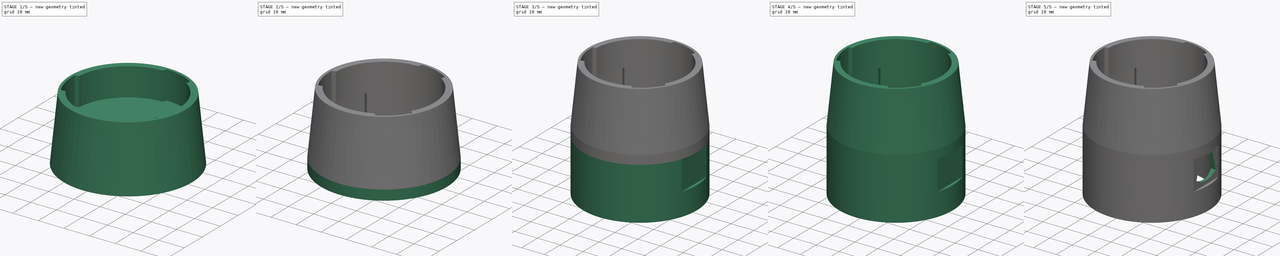
[diagram: build sequence overview — one tinted view per stage of 5, left to right]
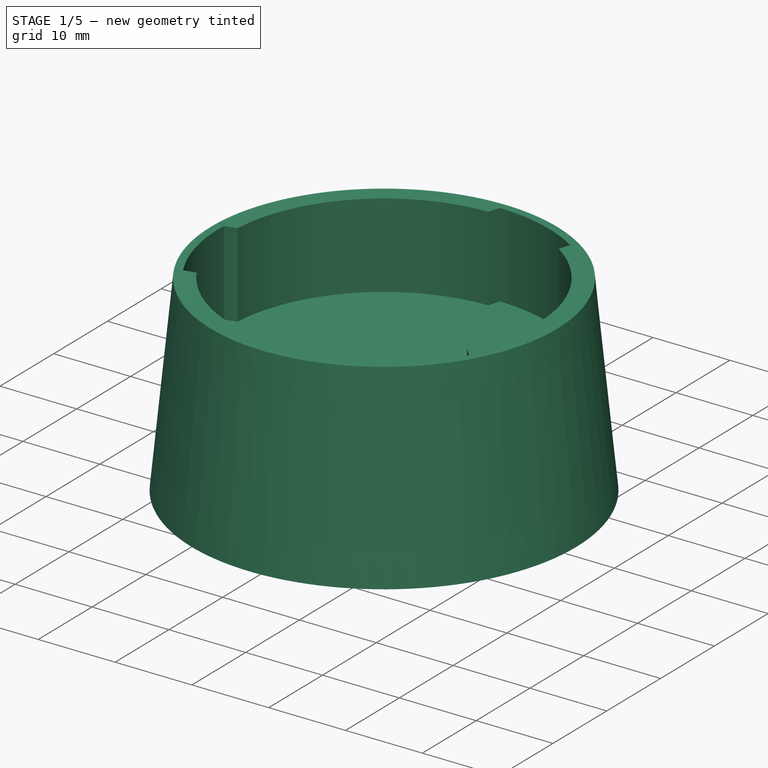
[diagram: stage 1 of 5 — iso view after this stage's code; geometry added in this stage tinted green]
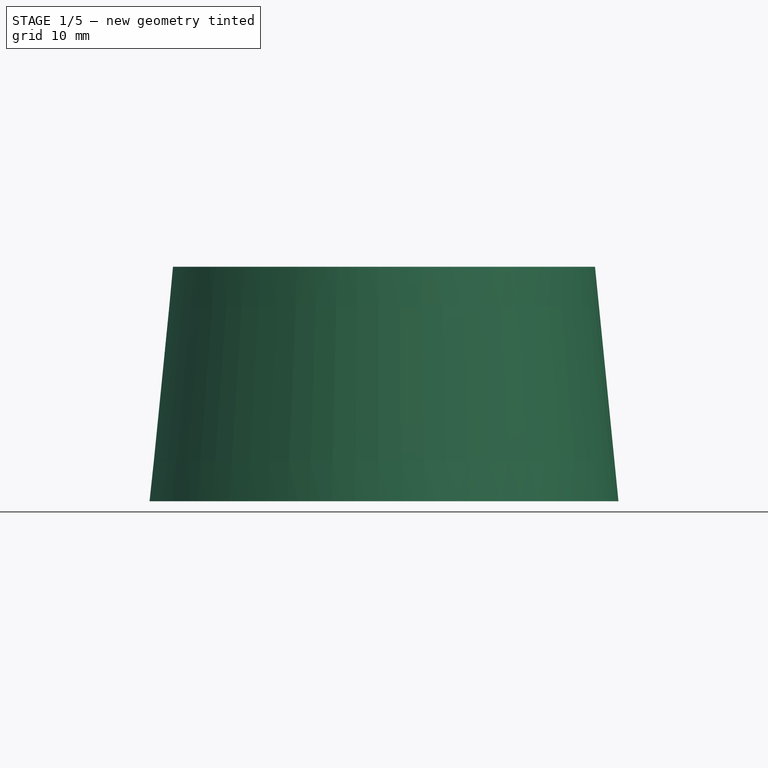
[diagram: stage 1 of 5 — front view after this stage's code; geometry added in this stage tinted green]
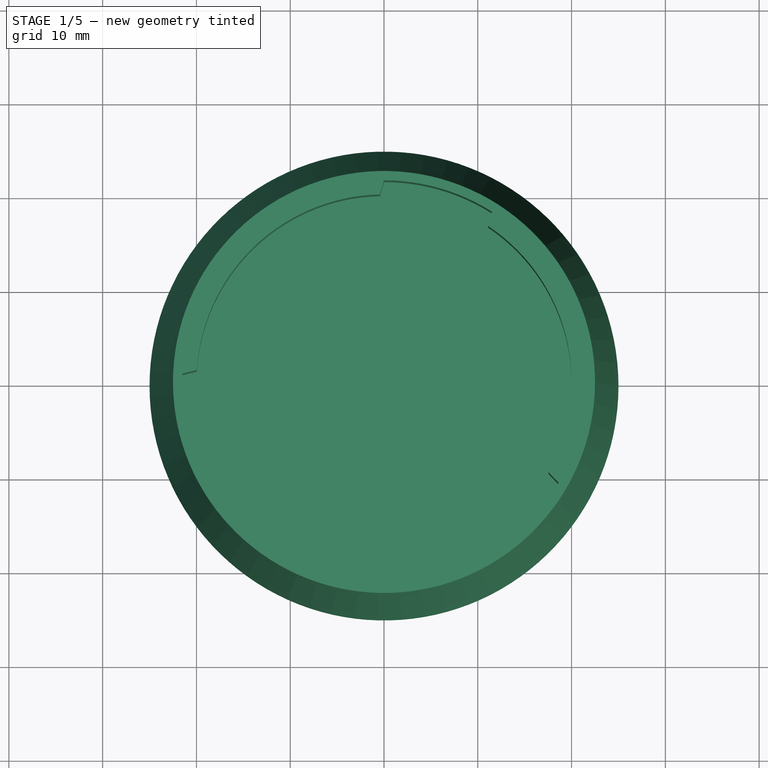
[diagram: stage 1 of 5 — top view after this stage's code; geometry added in this stage tinted green]
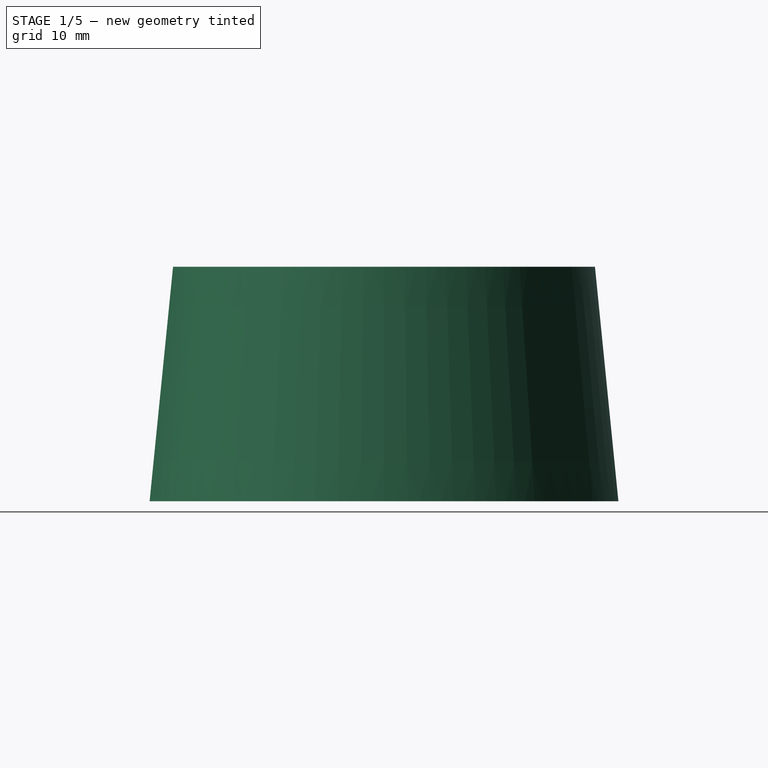
[diagram: stage 1 of 5 — right view after this stage's code; geometry added in this stage tinted green]
FCSTD DOCUMENT  (FreeCAD 0.20R29177 (Git))
Label: VacuumAdapter_Gas35_FestoolTS55
License: All rights reserved
LicenseURL: http://en.wikipedia.org/wiki/All_rights_reserved
objects: Part::Extrusion×7, Sketcher::SketchObject×6, Part::Face×6, Part::Fillet×4, Part::Cut×4, Part::Fuse×3, Part::Offset×2, Part::Cone×1
note: 33 computed .brp shape members not serialized (recipe doc carries the construction recipe); baked Part::Feature solids carry a one-line shape summary decoded from their .brp

FEATURE [Part::Cone] Cone
  Angle = 360
  AttacherType = Attacher::AttachEngine3D
  Height = 25
  Placement = pos=(0,0,27) rot=(0,0,1;0rad)
  Radius1 = 25
  Radius2 = 22.5
FEATURE [Sketcher::SketchObject] Sketch003
  FullyConstrained = true
  MapMode = 5
  Placement = pos=(0,0,52) rot=(0,0,1;0rad)
  Support = -> [Cone]
  sketch-geometry (17):
    g0: LineSegment StartX=0 StartY=0 StartZ=0 EndX=19.4856 EndY=-11.25 EndZ=0
    g1: LineSegment StartX=0 StartY=0 StartZ=0 EndX=-19.4856 EndY=-11.25 EndZ=0
    g2: ArcOfCircle CenterX=0 CenterY=0 CenterZ=0 NormalX=0 NormalY=0 NormalZ=1 AngleXU=0 Radius=21.5 StartAngle=1.00515 EndAngle=1.5708
    g3: ArcOfCircle CenterX=0 CenterY=0 CenterZ=0 NormalX=0 NormalY=0 NormalZ=1 AngleXU=0 Radius=21.5 StartAngle=5.19394 EndAngle=5.75959
    g4: ArcOfCircle CenterX=0 CenterY=0 CenterZ=0 NormalX=0 NormalY=0 NormalZ=1 AngleXU=0 Radius=21.5 StartAngle=3.09954 EndAngle=3.66519
    g5: ArcOfCircle CenterX=0 CenterY=0 CenterZ=0 NormalX=0 NormalY=0 NormalZ=1 AngleXU=0 Radius=20 StartAngle=1.59266 EndAngle=3.07767
    g6: ArcOfCircle CenterX=0 CenterY=0 CenterZ=0 NormalX=0 NormalY=0 NormalZ=1 AngleXU=0 Radius=20 StartAngle=3.68706 EndAngle=5.17207
    g7: ArcOfCircle CenterX=0 CenterY=0 CenterZ=0 NormalX=0 NormalY=0 NormalZ=1 AngleXU=0 Radius=20 StartAngle=5.78145 EndAngle=7.26646
    g8: LineSegment StartX=17.535 StartY=-9.61888 StartZ=0 EndX=18.6195 EndY=-10.75 EndZ=0
    g9: LineSegment StartX=8.87322 StartY=-17.9239 StartZ=0 EndX=9.95774 EndY=-19.055 EndZ=0
    g10: LineSegment StartX=-17.0977 StartY=-10.3763 StartZ=0 EndX=-18.6195 EndY=-10.75 EndZ=0
    g11: LineSegment StartX=-21.481 StartY=0.903846 StartZ=0 EndX=-19.9592 EndY=1.27751 EndZ=0
    g12: LineSegment StartX=-0.437313 StartY=19.9952 StartZ=0 EndX=1e-16 EndY=21.5 EndZ=0
    g13: LineSegment StartX=11.0859 StartY=16.6464 StartZ=0 EndX=11.5232 EndY=18.1512 EndZ=0
    g14: LineSegment StartX=-0.437313 StartY=19.9952 StartZ=0 EndX=11.0859 EndY=16.6464 EndZ=0
    g15: LineSegment StartX=17.535 StartY=-9.61888 StartZ=0 EndX=8.87322 EndY=-17.9239 EndZ=0
    g16: LineSegment StartX=-17.0977 StartY=-10.3763 StartZ=0 EndX=-19.9592 EndY=1.27751 EndZ=0
  constraints (48):
    c: Coincident(g0,g-1)
    c: Coincident(g1,g0)
    c: Angle(g0,g-2) = 2.0944
    c: Angle(g-2,g1) = 2.0944
    c: Coincident(g2,g0)
    c: PointOnObject(g2,g-2)
    c: Diameter(g2) = 43
    c: Coincident(g3,g2)
    c: PointOnObject(g3,g0)
    c: Diameter(g3) = 43
    c: Coincident(g4,g2)
    c: PointOnObject(g4,g1)
    c: Diameter(g4) = 43
    c: Distance(g2,g2) = 12
    c: Distance(g3,g3) = 12
    c: Distance(g4,g4) = 12
    c: Distance(g1) = 22.5
    c: Distance(g0) = 22.5
    c: Coincident(g5,g2)
    c: Coincident(g6,g2)
    c: Coincident(g7,g2)
    c: Diameter(g5) = 40
    c: Diameter(g7) = 40
    c: Diameter(g6) = 40
    c: Coincident(g8,g7)
    c: Coincident(g8,g3)
    c: Coincident(g9,g6)
    c: Coincident(g9,g3)
    c: Coincident(g10,g6)
    c: Coincident(g10,g4)
    c: Coincident(g11,g4)
    c: Coincident(g11,g5)
    c: Coincident(g12,g5)
    c: Coincident(g12,g2)
    c: Coincident(g13,g7)
    c: Coincident(g13,g2)
    c: Parallel(g8,g9)
    c: Parallel(g10,g11)
    c: Parallel(g12,g13)
    c: Coincident(g14,g5)
    c: Coincident(g14,g7)
    c: Angle(g14,g12) = 1.5708
    c: Coincident(g15,g7)
    c: Coincident(g15,g6)
    c: Coincident(g16,g6)
    c: Coincident(g16,g5)
    c: Angle(g15,g8) = 1.5708
    c: Angle(g16,g10) = 1.5708
FEATURE [Part::Face] Face003
  FaceMakerClass = Part::FaceMakerBullseye
  Sources = -> [Sketch003]
FEATURE [Part::Extrusion] Extrude004
  Base = -> Sketch003
  Dir = (0,0,1)
  DirMode = 2
  FaceMakerClass = Part::FaceMakerBullseye
  LengthFwd = -11
  LengthRev = 0
  Solid = true
  Symmetric = false
FEATURE [Sketcher::SketchObject] Sketch004
  ExternalGeometry = -> [Extrude004]
  FullyConstrained = true
  MapMode = 5
  Placement = pos=(0,0,41) rot=(1,0,0;3.14159rad)
  Support = -> [Extrude004]
  sketch-geometry (12):
    g0: ArcOfCircle CenterX=0 CenterY=0 CenterZ=0 NormalX=0 NormalY=0 NormalZ=1 AngleXU=0 Radius=21.5 StartAngle=4.71239 EndAngle=5.89667
    g1: ArcOfCircle CenterX=0 CenterY=0 CenterZ=0 NormalX=0 NormalY=0 NormalZ=1 AngleXU=0 Radius=21.5 StartAngle=0.523599 EndAngle=1.70788
    g2: ArcOfCircle CenterX=0 CenterY=0 CenterZ=0 NormalX=0 NormalY=0 NormalZ=1 AngleXU=0 Radius=21.5 StartAngle=2.61799 EndAngle=3.80228
    g3: LineSegment StartX=-3.9e-15 StartY=-21.5 StartZ=0 EndX=-0.437313 EndY=-19.9952 EndZ=0
    g4: LineSegment StartX=-18.6195 StartY=10.75 StartZ=0 EndX=-17.0977 EndY=10.3763 EndZ=0
    g5: LineSegment StartX=18.6195 StartY=10.75 StartZ=0 EndX=17.535 EndY=9.61888 EndZ=0
    g6: ArcOfCircle CenterX=0 CenterY=0 CenterZ=0 NormalX=0 NormalY=0 NormalZ=1 AngleXU=0 Radius=20 StartAngle=5.91225 EndAngle=6.78492
    g7: ArcOfCircle CenterX=0 CenterY=0 CenterZ=0 NormalX=0 NormalY=0 NormalZ=1 AngleXU=0 Radius=20 StartAngle=3.81786 EndAngle=4.69052
    g8: ArcOfCircle CenterX=0 CenterY=0 CenterZ=0 NormalX=0 NormalY=0 NormalZ=1 AngleXU=0 Radius=20 StartAngle=1.72346 EndAngle=2.59613
    g9: LineSegment StartX=-3.04146 StartY=19.7674 StartZ=0 EndX=-2.93813 EndY=21.2983 EndZ=0
    g10: LineSegment StartX=19.9139 StartY=-8.10465 StartZ=0 EndX=18.6398 EndY=-7.24971 EndZ=0
    g11: LineSegment StartX=-15.5983 StartY=-12.5177 StartZ=0 EndX=-16.9758 EndY=-13.1936 EndZ=0
  constraints (30):
    c: Coincident(g0,g-1)
    c: Coincident(g0,g-3)
    c: Coincident(g1,g0)
    c: Coincident(g1,g-5)
    c: Coincident(g2,g0)
    c: Coincident(g2,g-4)
    c: Distance(g0,g0) = 24
    c: Distance(g1,g1) = 24
    c: Distance(g2,g2) = 24
    c: Coincident(g3,g0)
    c: Coincident(g3,g-3)
    c: Coincident(g4,g2)
    c: Coincident(g4,g-4)
    c: Coincident(g5,g1)
    c: Coincident(g5,g-5)
    c: Coincident(g6,g0)
    c: Coincident(g6,g5)
    c: Coincident(g7,g0)
    c: Coincident(g7,g3)
    c: Coincident(g8,g0)
    c: Coincident(g8,g4)
    c: Coincident(g9,g8)
    c: Coincident(g9,g1)
    c: Coincident(g10,g0)
    c: Coincident(g10,g6)
    c: Coincident(g11,g7)
    c: Coincident(g11,g2)
    c: Angle(g7) = 0.872665
    c: Angle(g6) = 0.872665
    c: Angle(g8) = 0.872665
FEATURE [Part::Face] Face004
  FaceMakerClass = Part::FaceMakerBullseye
  Sources = -> [Sketch004]
FEATURE [Part::Extrusion] Extrude005
  Base = -> Face004
  Dir = (0,0,1)
  DirMode = 2
  FaceMakerClass = Part::FaceMakerBullseye
  LengthFwd = -9
  LengthRev = 0
  Solid = false
  Symmetric = false
FEATURE [Part::Cut] Cut001
  Base = -> Cone
  Tool = -> Extrude004
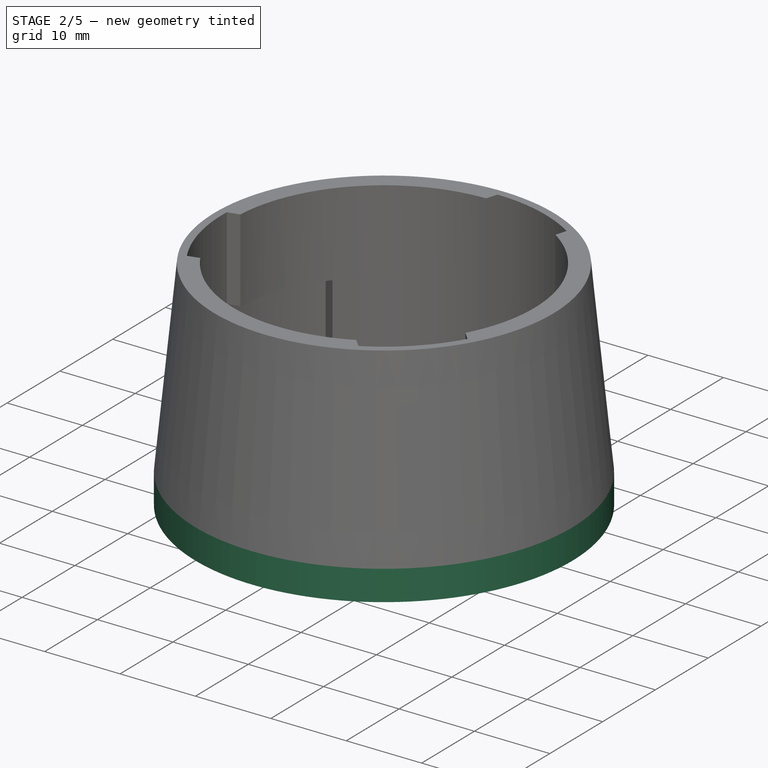
[diagram: stage 2 of 5 — iso view after this stage's code; geometry added in this stage tinted green]
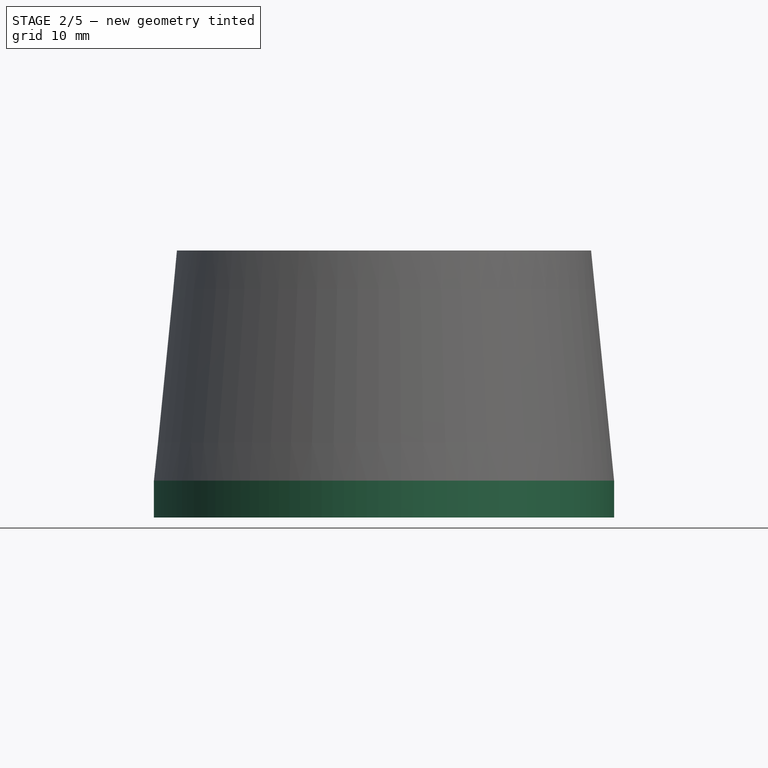
[diagram: stage 2 of 5 — front view after this stage's code; geometry added in this stage tinted green]
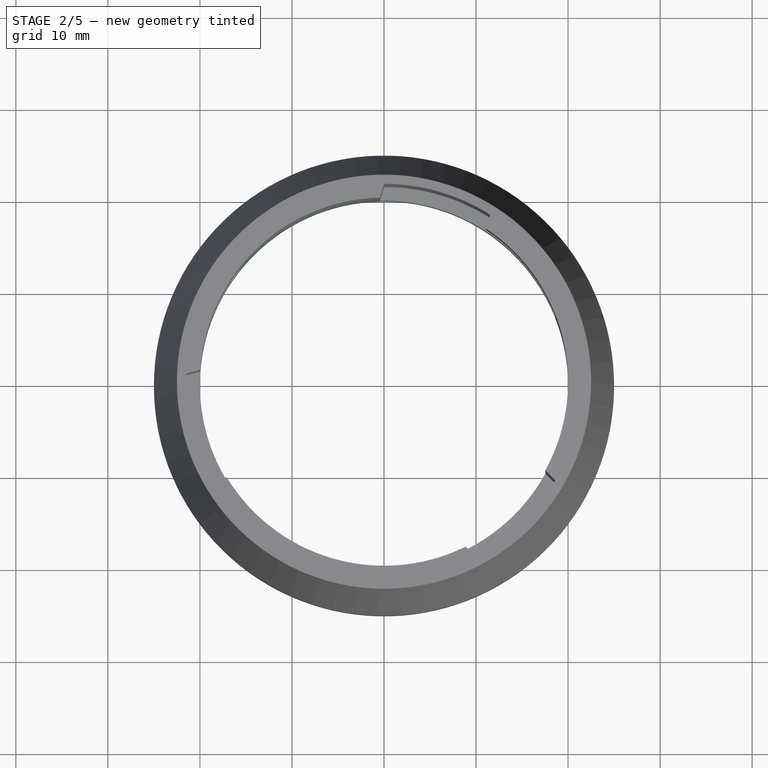
[diagram: stage 2 of 5 — top view after this stage's code; geometry added in this stage tinted green]
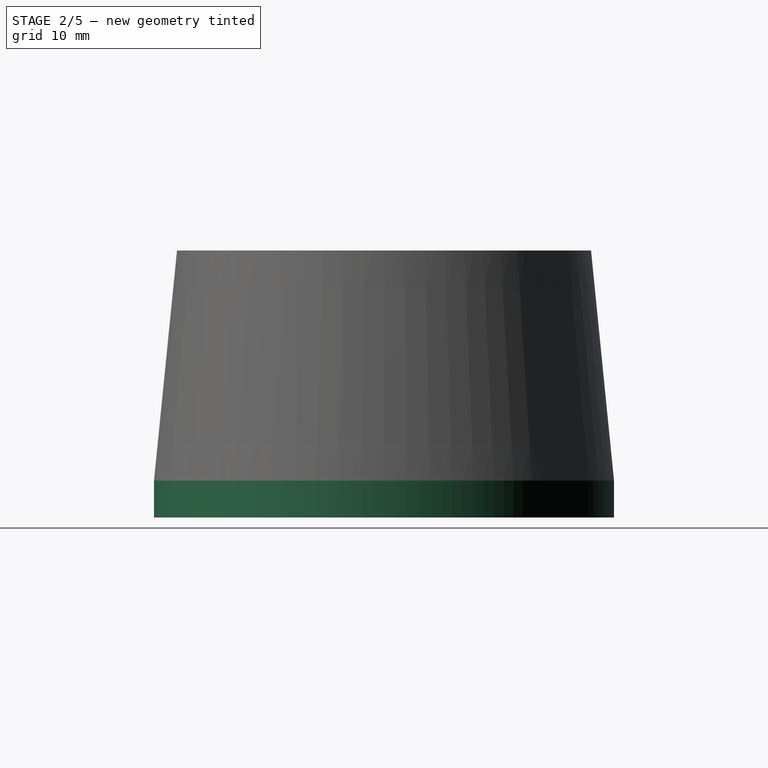
[diagram: stage 2 of 5 — right view after this stage's code; geometry added in this stage tinted green]
FEATURE [Part::Offset] Offset001
  Fill = false
  Intersection = false
  Join = 0
  Mode = 0
  SelfIntersection = false
  Source = -> Face
  Value = 23
FEATURE [Part::Extrusion] Extrude002
  Base = -> Offset001
  Dir = (0,0,1)
  DirMode = 2
  FaceMakerClass = Part::FaceMakerBullseye
  LengthFwd = 4
  LengthRev = 0
  Solid = false
  Symmetric = false
FEATURE [Sketcher::SketchObject] Sketch005
  FullyConstrained = true
  MapMode = 5
  Placement = pos=(0,0,32) rot=(1,0,0;3.14159rad)
  Support = -> [Extrude005]
  sketch-geometry (1):
    g0: Circle CenterX=0 CenterY=0 CenterZ=0 NormalX=0 NormalY=0 NormalZ=1 AngleXU=0 Radius=20
  constraints (2):
    c: Coincident(g0,g-1)
    c: Diameter(g0) = 40
FEATURE [Part::Face] Face005
  FaceMakerClass = Part::FaceMakerBullseye
  Sources = -> [Sketch005]
FEATURE [Part::Extrusion] Extrude006
  Base = -> Face005
  Dir = (0,0,1)
  DirMode = 2
  FaceMakerClass = Part::FaceMakerBullseye
  LengthFwd = -5
  LengthRev = 0
  Solid = false
  Symmetric = false
FEATURE [Part::Cut] Cut002
  Base = -> Cut001
  Tool = -> Extrude005
FEATURE [Part::Cut] Cut003
  Base = -> Cut002
  Tool = -> Extrude006
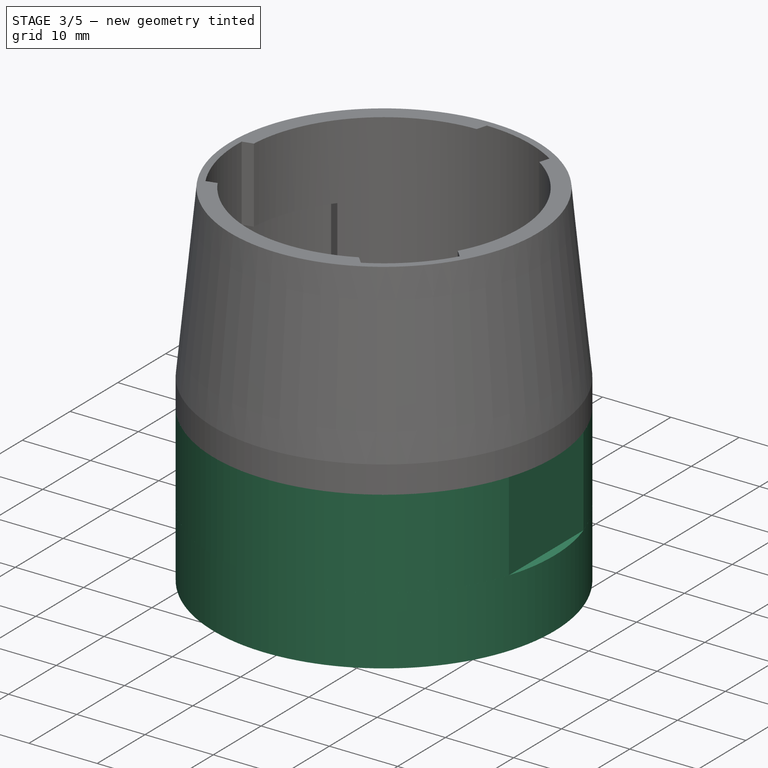
[diagram: stage 3 of 5 — iso view after this stage's code; geometry added in this stage tinted green]
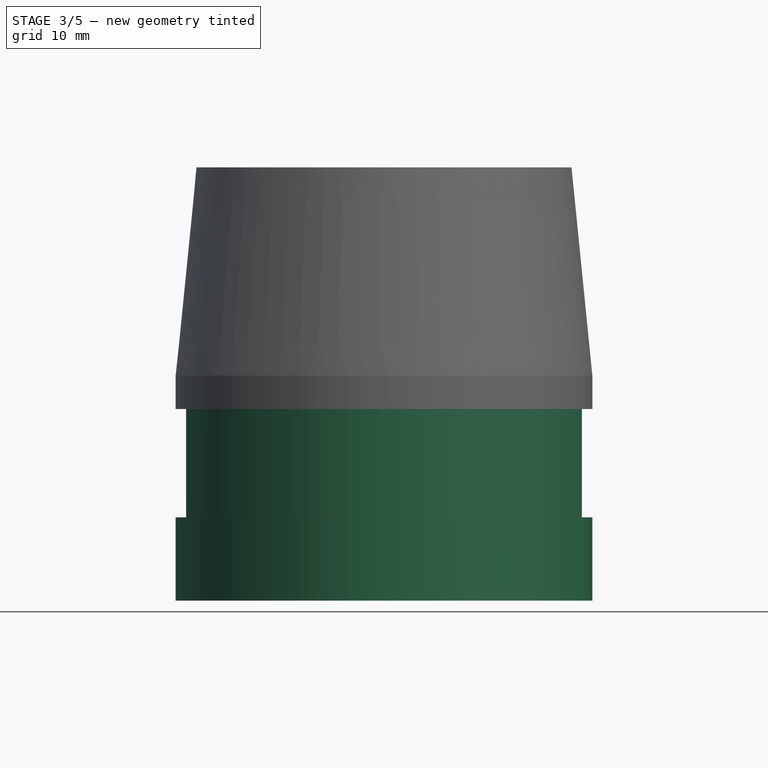
[diagram: stage 3 of 5 — front view after this stage's code; geometry added in this stage tinted green]
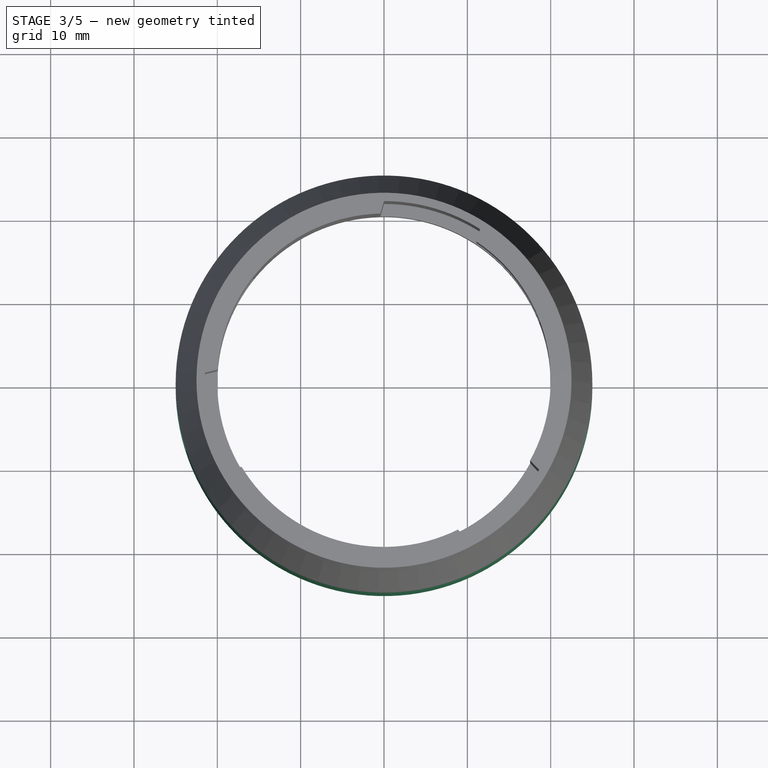
[diagram: stage 3 of 5 — top view after this stage's code; geometry added in this stage tinted green]
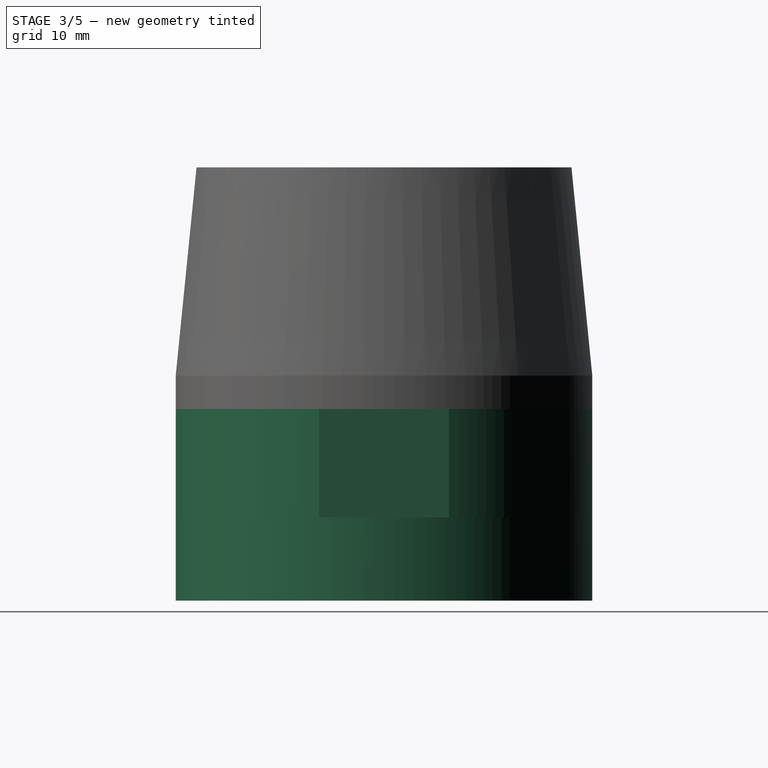
[diagram: stage 3 of 5 — right view after this stage's code; geometry added in this stage tinted green]
FEATURE [Sketcher::SketchObject] Sketch
  FullyConstrained = false
  sketch-geometry (10):
    g0: Circle CenterX=0 CenterY=0 CenterZ=0 NormalX=0 NormalY=0 NormalZ=1 AngleXU=0 Radius=22.5
    g1: Circle CenterX=0 CenterY=0 CenterZ=0 NormalX=0 NormalY=0 NormalZ=1 AngleXU=0 Radius=25
    g2: LineSegment StartX=-23.75 StartY=7.80625 StartZ=0 EndX=23.75 EndY=7.80625 EndZ=0
    g3: LineSegment StartX=23.75 StartY=7.80625 StartZ=0 EndX=23.75 EndY=-7.80625 EndZ=0
    g4: LineSegment StartX=23.75 StartY=-7.80625 StartZ=0 EndX=-23.75 EndY=-7.80625 EndZ=0
    g5: LineSegment StartX=-23.75 StartY=-7.80625 StartZ=0 EndX=-23.75 EndY=7.80625 EndZ=0
    g6: ArcOfCircle CenterX=0 CenterY=0 CenterZ=0 NormalX=0 NormalY=0 NormalZ=1 AngleXU=0 Radius=25 StartAngle=0.317561 EndAngle=2.82403
    g7: LineSegment StartX=-23.75 StartY=7.80625 StartZ=0 EndX=-23.75 EndY=-7.80625 EndZ=0
    g8: LineSegment StartX=23.75 StartY=7.80625 StartZ=0 EndX=23.75 EndY=-7.80625 EndZ=0
    g9: ArcOfCircle CenterX=0 CenterY=0 CenterZ=0 NormalX=0 NormalY=0 NormalZ=1 AngleXU=0 Radius=25 StartAngle=3.45915 EndAngle=5.96562
  constraints (23):
    c: Coincident(g0,g-1)
    c: Diameter(g0) = 45
    c: Coincident(g1,g0)
    c: Diameter(g1) = 50
    c: Coincident(g2,g3)
    c: Coincident(g3,g4)
    c: Coincident(g4,g5)
    c: Coincident(g5,g2)
    c: Horizontal(g2)
    c: Horizontal(g4)
    c: Vertical(g3)
    c: PointOnObject(g2,g1)
    c: PointOnObject(g3,g1)
    c: Coincident(g6,g0)
    c: Coincident(g6,g2)
    c: Coincident(g6,g2)
    c: Coincident(g7,g6)
    c: Coincident(g7,g4)
    c: Coincident(g8,g6)
    c: Coincident(g8,g3)
    c: Coincident(g9,g0)
    c: Coincident(g9,g8)
    c: Coincident(g9,g7)
FEATURE [Sketcher::SketchObject] Sketch001
  FullyConstrained = true
  sketch-geometry (2):
    g0: Circle CenterX=0 CenterY=0 CenterZ=0 NormalX=0 NormalY=0 NormalZ=1 AngleXU=0 Radius=22.5
    g1: Circle CenterX=0 CenterY=0 CenterZ=0 NormalX=0 NormalY=0 NormalZ=1 AngleXU=0 Radius=25
  constraints (4):
    c: Coincident(g0,g-1)
    c: Diameter(g0) = 45
    c: Coincident(g1,g0)
    c: Diameter(g1) = 50
FEATURE [Part::Face] Face
  FaceMakerClass = Part::FaceMakerBullseye
  Sources = -> [Sketch001]
FEATURE [Part::Extrusion] Extrude
  Base = -> Face
  Dir = (0,0,1)
  DirMode = 2
  FaceMakerClass = Part::FaceMakerBullseye
  LengthFwd = 10
  LengthRev = 0
  Solid = false
  Symmetric = false
FEATURE [Part::Face] Face001
  FaceMakerClass = Part::FaceMakerBullseye
  Sources = -> [Sketch]
FEATURE [Part::Offset] Offset
  Fill = false
  Intersection = false
  Join = 0
  Mode = 0
  SelfIntersection = false
  Source = -> Face001
  Value = 10
FEATURE [Part::Extrusion] Extrude001
  Base = -> Offset
  Dir = (0,0,1)
  DirMode = 2
  FaceMakerClass = Part::FaceMakerBullseye
  LengthFwd = 13
  LengthRev = 0
  Solid = false
  Symmetric = false
FEATURE [Part::Fuse] Fusion
  Base = -> Extrude
  Tool = -> Extrude002
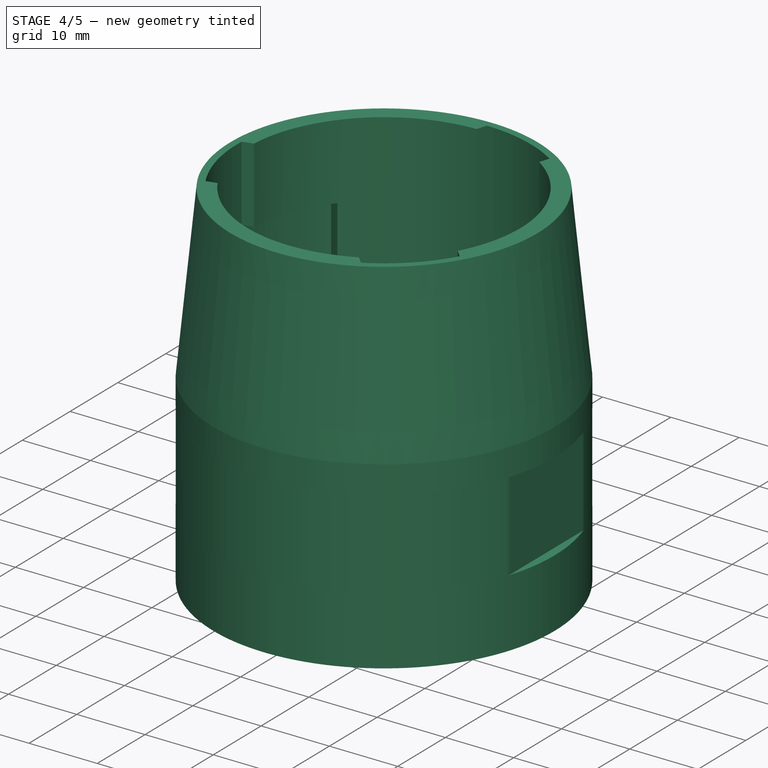
[diagram: stage 4 of 5 — iso view after this stage's code; geometry added in this stage tinted green]
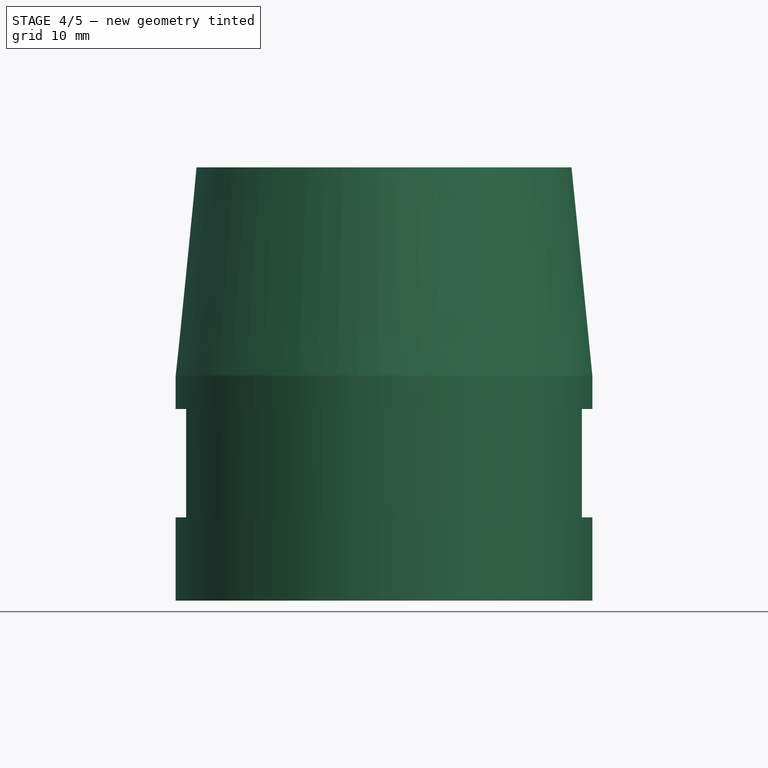
[diagram: stage 4 of 5 — front view after this stage's code; geometry added in this stage tinted green]
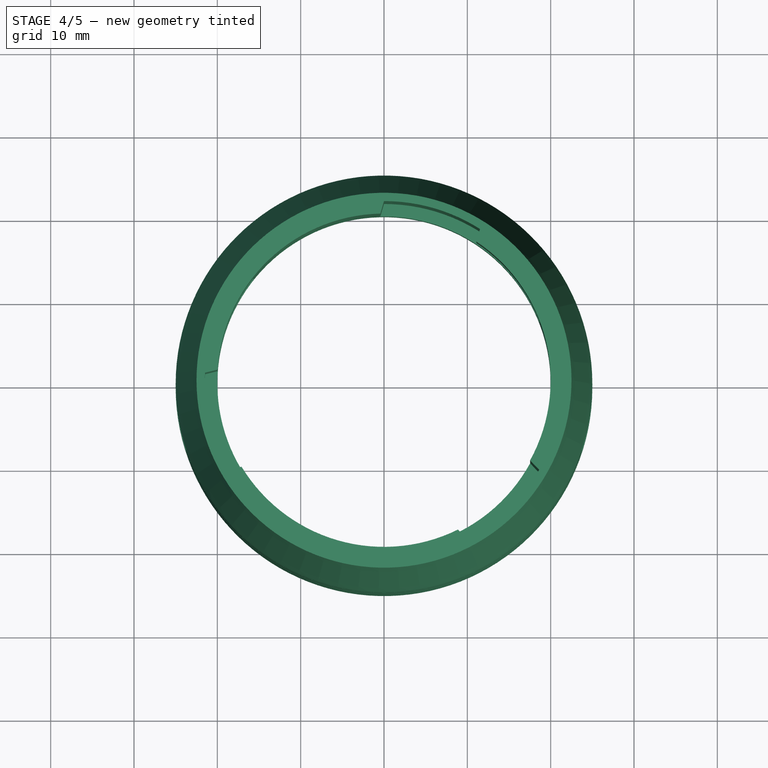
[diagram: stage 4 of 5 — top view after this stage's code; geometry added in this stage tinted green]
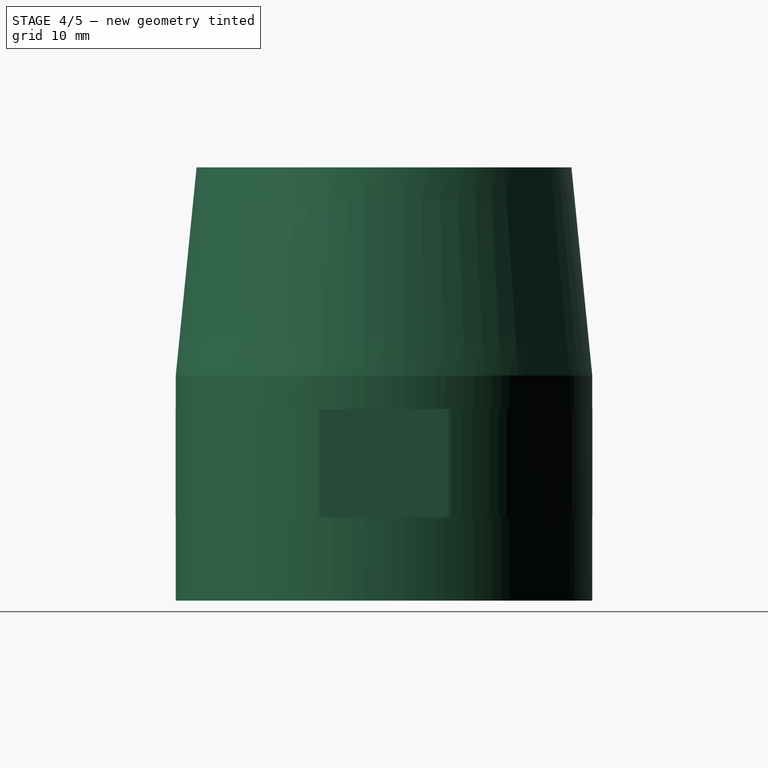
[diagram: stage 4 of 5 — right view after this stage's code; geometry added in this stage tinted green]
FEATURE [Part::Fillet] Fillet
  Base = -> Extrude001
  Edges = 1 edges r=2: [Edge8]
FEATURE [Part::Fillet] Fillet001
  Base = -> Fillet
  Edges = 1 edges r=2: [Edge17]
FEATURE [Part::Fillet] Fillet002
  Base = -> Fillet001
  Edges = 1 edges r=2: [Edge16]
FEATURE [Part::Fillet] Fillet003
  Base = -> Fillet002
  Edges = 1 edges r=2: [Edge17]
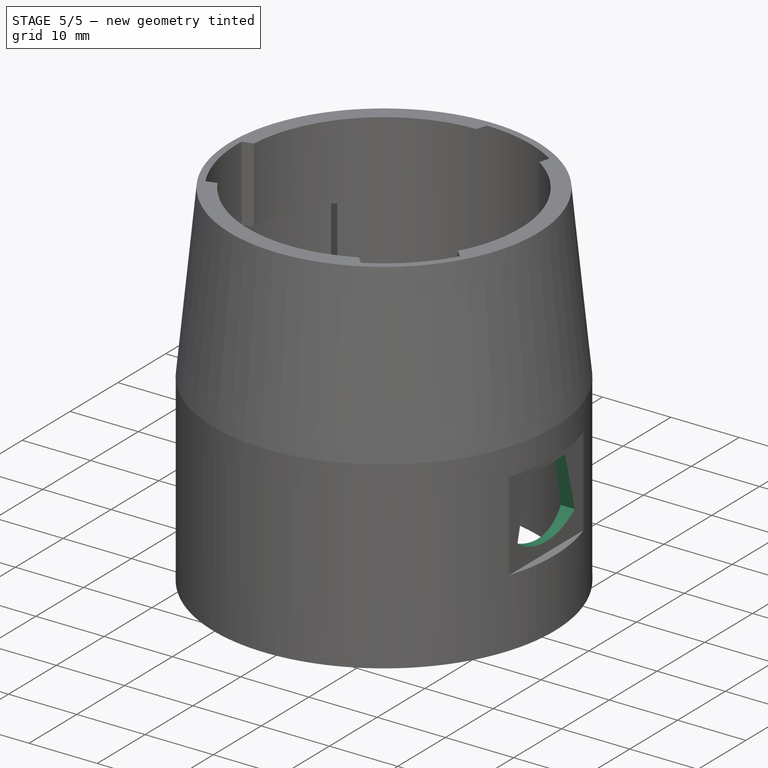
[diagram: stage 5 of 5 — iso view after this stage's code; geometry added in this stage tinted green]
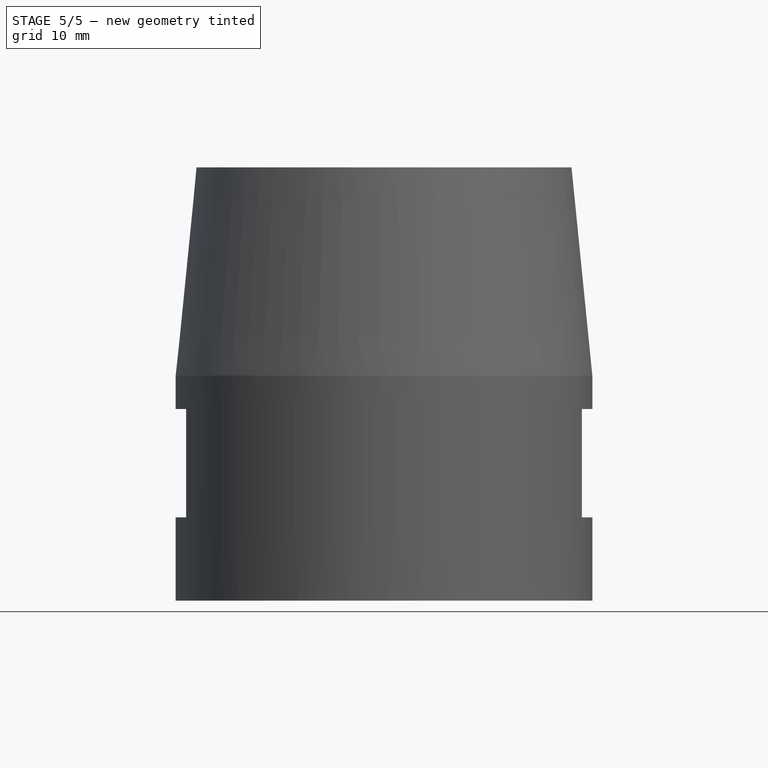
[diagram: stage 5 of 5 — front view after this stage's code; geometry added in this stage tinted green]
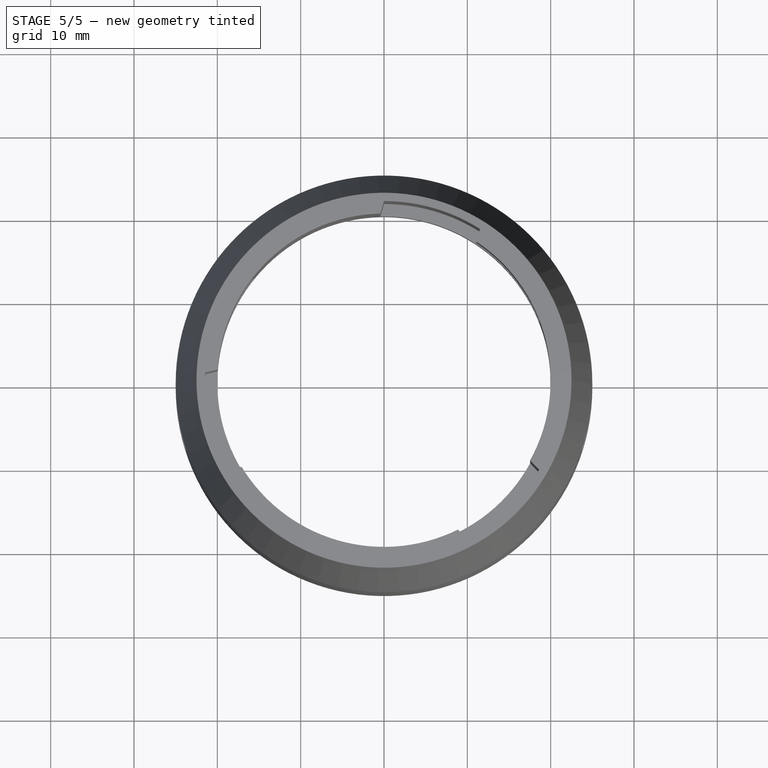
[diagram: stage 5 of 5 — top view after this stage's code; geometry added in this stage tinted green]
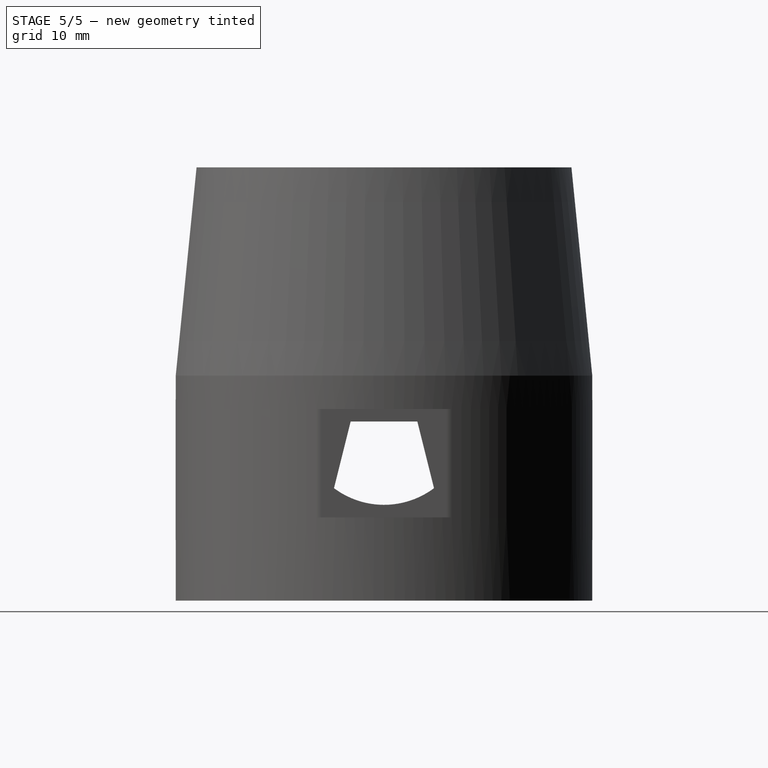
[diagram: stage 5 of 5 — right view after this stage's code; geometry added in this stage tinted green]
FEATURE [Part::Fuse] Fusion001
  Base = -> Fillet003
  Tool = -> Fusion
FEATURE [Sketcher::SketchObject] Sketch002
  FullyConstrained = true
  MapMode = 5
  Placement = pos=(23.75,0,0) rot=(0.57735,0.57735,0.57735;2.0944rad)
  Support = -> [Fusion001]
  sketch-geometry (5):
    g0: LineSegment StartX=-4 StartY=21.5 StartZ=0 EndX=4 EndY=21.5 EndZ=0
    g1: LineSegment StartX=-6 StartY=13.5 StartZ=0 EndX=6 EndY=13.5 EndZ=0
    g2: LineSegment StartX=4 StartY=21.5 StartZ=0 EndX=6 EndY=13.5 EndZ=0
    g3: LineSegment StartX=-4 StartY=21.5 StartZ=0 EndX=-6 EndY=13.5 EndZ=0
    g4: ArcOfCircle CenterX=5e-16 CenterY=21.5 CenterZ=0 NormalX=0 NormalY=0 NormalZ=1 AngleXU=0 Radius=10 StartAngle=4.06889 EndAngle=5.35589
  constraints (15):
    c: Horizontal(g0)
    c: Horizontal(g1)
    c: DistanceY(g-1,g1) = 13.5
    c: DistanceY(g1,g0) = 8
    c: DistanceX(g-1,g0) = 4
    c: DistanceX(g-1,g1) = 6
    c: DistanceX(g1,g1) = 12
    c: DistanceX(g0,g0) = 8
    c: Coincident(g2,g0)
    c: Coincident(g2,g1)
    c: Coincident(g3,g0)
    c: Coincident(g3,g1)
    c: PointOnObject(g4,g0)
    c: Coincident(g4,g2)
    c: Coincident(g4,g3)
FEATURE [Part::Face] Face002
  FaceMakerClass = Part::FaceMakerBullseye
  Sources = -> [Sketch002]
FEATURE [Part::Extrusion] Extrude003
  Base = -> Face002
  Dir = (1,0,0)
  DirMode = 2
  FaceMakerClass = Part::FaceMakerBullseye
  LengthFwd = -47.5
  LengthRev = 0
  Solid = false
  Symmetric = false
FEATURE [Part::Cut] Cut
  Base = -> Fusion001
  Tool = -> Extrude003
FEATURE [Part::Fuse] Fusion002
  Base = -> Cut
  Tool = -> Cut003
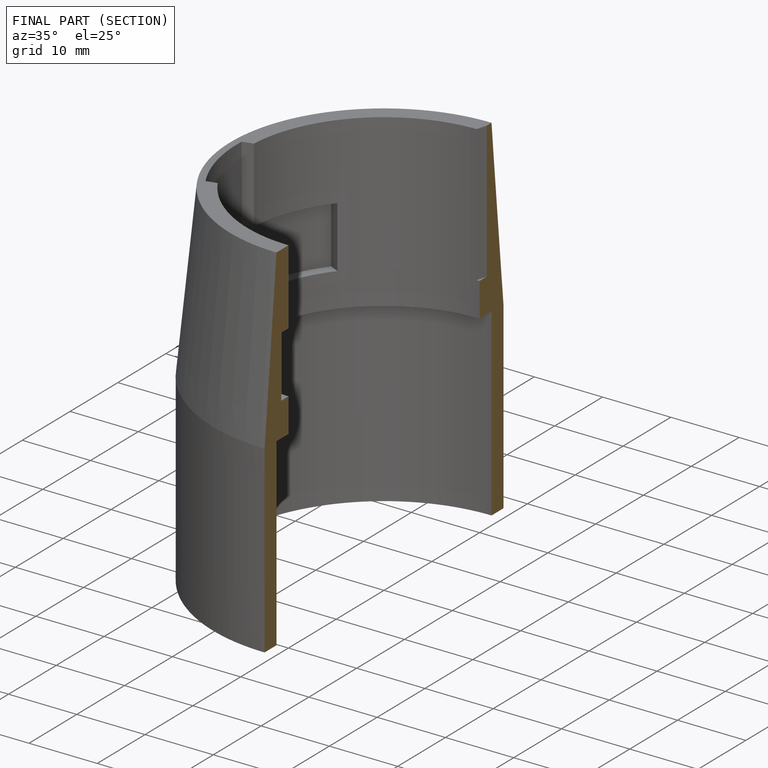
[diagram: finished part — half-section view (interior)]
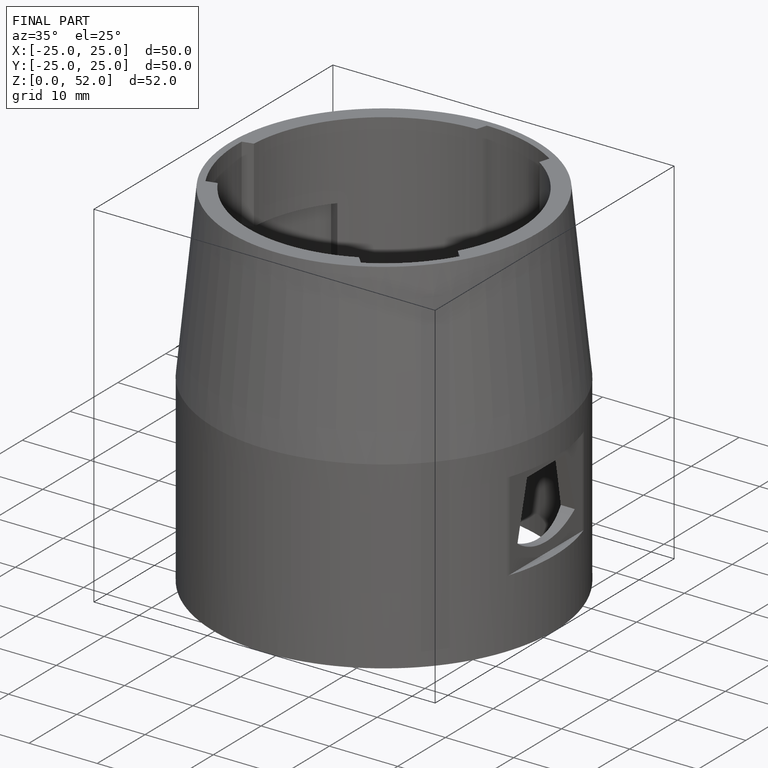
[diagram: finished part — iso view with bounding-box wireframe]
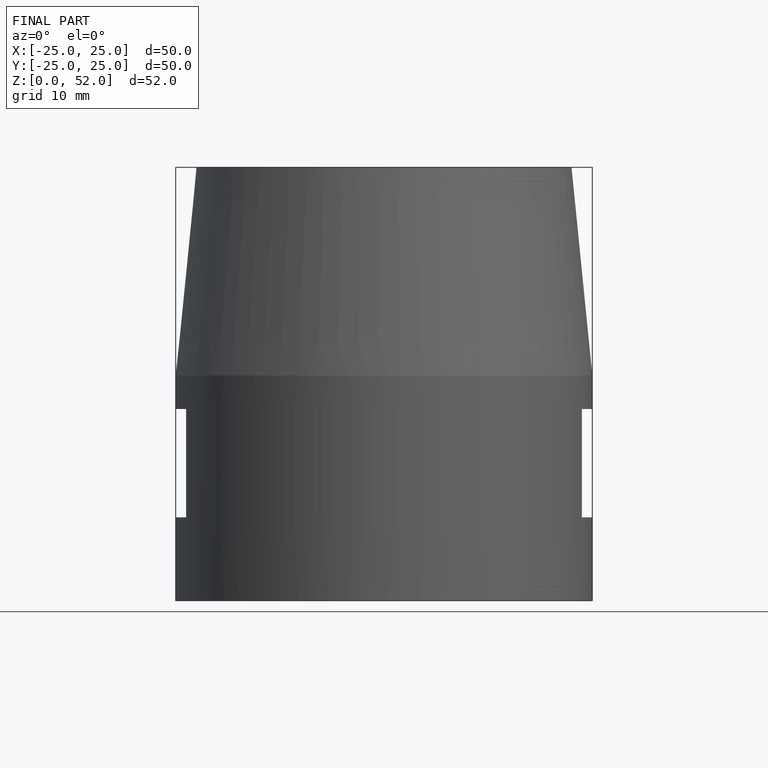
[diagram: finished part — front view with bounding-box wireframe]
